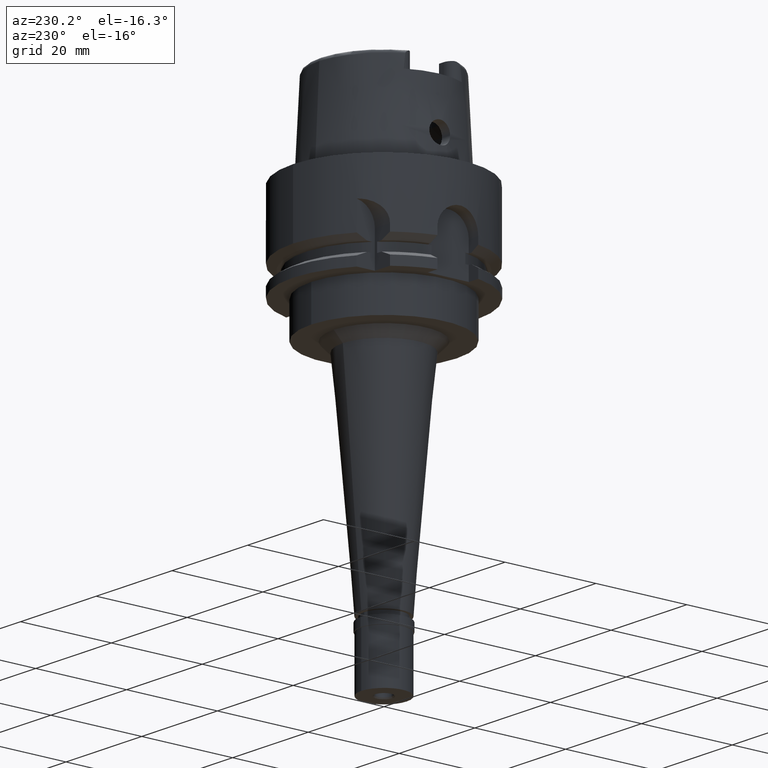
[diagram: clean part render]
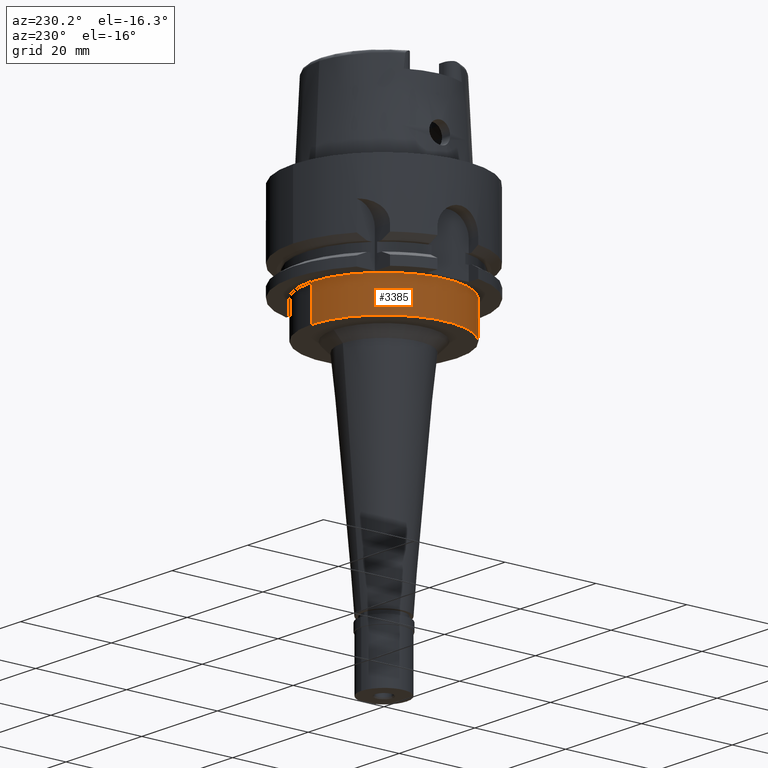
[diagram: same view with one face highlighted and labeled with its STEP entity id]
A machine part, auxiliary view. The second image highlights one B-rep face of the part: STEP entity #3385.
In plain terms, the highlighted cylindrical surface (partial cylindrical patch) has radius 16 mm, axis along (0, 0, -1).
Its self-contained STEP definition (entity closure, byte-faithful):
#12 = DIRECTION ( 'NONE',  ( 0.0000000000000000000, 0.0000000000000000000, -1.000000000000000000 ) ) ;
#33 = EDGE_CURVE ( 'NONE', #4468, #476, #4226, .T. ) ;
#90 = ORIENTED_EDGE ( 'NONE', *, *, #33, .T. ) ;
#256 = ORIENTED_EDGE ( 'NONE', *, *, #411, .F. ) ;
#411 = EDGE_CURVE ( 'NONE', #4468, #1523, #2058, .T. ) ;
#439 = LINE ( 'NONE', #2959, #1484 ) ;
#476 = VERTEX_POINT ( 'NONE', #798 ) ;
#526 = ORIENTED_EDGE ( 'NONE', *, *, #4655, .T. ) ;
#703 = DIRECTION ( 'NONE',  ( 0.0000000000000000000, 0.0000000000000000000, -1.000000000000000000 ) ) ;
#727 = AXIS2_PLACEMENT_3D ( 'NONE', #4362, #703, #4706 ) ;
#756 = AXIS2_PLACEMENT_3D ( 'NONE', #4844, #3721, #4443 ) ;
#798 = CARTESIAN_POINT ( 'NONE',  ( 0.0000000000000000000, 16.00000000000000000, -20.00000000000000000 ) ) ;
#1156 = EDGE_LOOP ( 'NONE', ( #526, #256, #90, #2861 ) ) ;
#1225 = CARTESIAN_POINT ( 'NONE',  ( 0.0000000000000000000, 16.00000000000000000, -27.50000000000000000 ) ) ;
#1304 = CARTESIAN_POINT ( 'NONE',  ( 0.0000000000000000000, 1.534666136351999886E-14, 25.31500000000000128 ) ) ;
#1484 = VECTOR ( 'NONE', #2561, 1000.000000000000000 ) ;
#1523 = VERTEX_POINT ( 'NONE', #2886 ) ;
#1752 = CYLINDRICAL_SURFACE ( 'NONE', #3285, 16.00000000000000000 ) ;
#2058 = LINE ( 'NONE', #3693, #3875 ) ;
#2561 = DIRECTION ( 'NONE',  ( 0.0000000000000000000, 0.0000000000000000000, -1.000000000000000000 ) ) ;
#2593 = VERTEX_POINT ( 'NONE', #1225 ) ;
#2861 = ORIENTED_EDGE ( 'NONE', *, *, #3753, .T. ) ;
#2886 = CARTESIAN_POINT ( 'NONE',  ( 0.0000000000000000000, -16.00000000000000000, -27.50000000000000000 ) ) ;
#2957 = DIRECTION ( 'NONE',  ( 0.0000000000000000000, -1.000000000000000000, 0.0000000000000000000 ) ) ;
#2959 = CARTESIAN_POINT ( 'NONE',  ( 0.0000000000000000000, 16.00000000000000000, -20.00000000000000000 ) ) ;
#3285 = AXIS2_PLACEMENT_3D ( 'NONE', #1304, #3383, #2957 ) ;
#3383 = DIRECTION ( 'NONE',  ( 0.0000000000000000000, 0.0000000000000000000, -1.000000000000000000 ) ) ;
#3385 = ADVANCED_FACE ( 'NONE', ( #5019 ), #1752, .T. ) ;
#3693 = CARTESIAN_POINT ( 'NONE',  ( 0.0000000000000000000, -16.00000000000000000, -20.00000000000000000 ) ) ;
#3721 = DIRECTION ( 'NONE',  ( 0.0000000000000000000, 0.0000000000000000000, 1.000000000000000000 ) ) ;
#3753 = EDGE_CURVE ( 'NONE', #476, #2593, #439, .T. ) ;
#3875 = VECTOR ( 'NONE', #12, 1000.000000000000000 ) ;
#4226 = CIRCLE ( 'NONE', #727, 16.00000000000000000 ) ;
#4286 = CARTESIAN_POINT ( 'NONE',  ( 0.0000000000000000000, -16.00000000000000000, -20.00000000000000000 ) ) ;
#4362 = CARTESIAN_POINT ( 'NONE',  ( 0.0000000000000000000, 1.534666136351999886E-14, -20.00000000000000000 ) ) ;
#4443 = DIRECTION ( 'NONE',  ( 0.0000000000000000000, 1.000000000000000000, 0.0000000000000000000 ) ) ;
#4468 = VERTEX_POINT ( 'NONE', #4286 ) ;
#4655 = EDGE_CURVE ( 'NONE', #2593, #1523, #4855, .T. ) ;
#4706 = DIRECTION ( 'NONE',  ( 0.0000000000000000000, -1.000000000000000000, 0.0000000000000000000 ) ) ;
#4844 = CARTESIAN_POINT ( 'NONE',  ( 0.0000000000000000000, 1.534666136351999886E-14, -27.50000000000000000 ) ) ;
#4855 = CIRCLE ( 'NONE', #756, 16.00000000000000000 ) ;
#5019 = FACE_OUTER_BOUND ( 'NONE', #1156, .T. ) ;